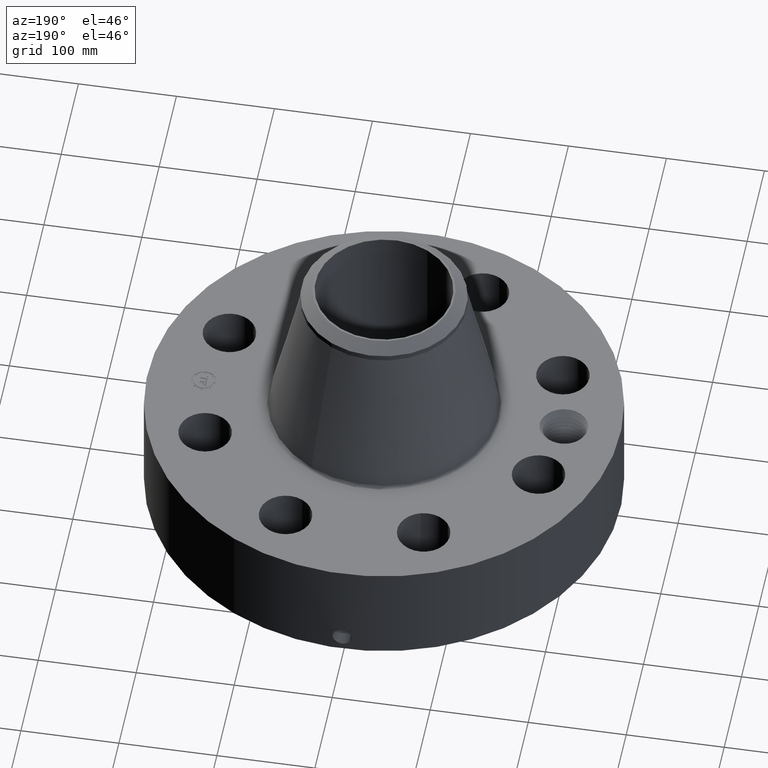
[diagram: clean part render]
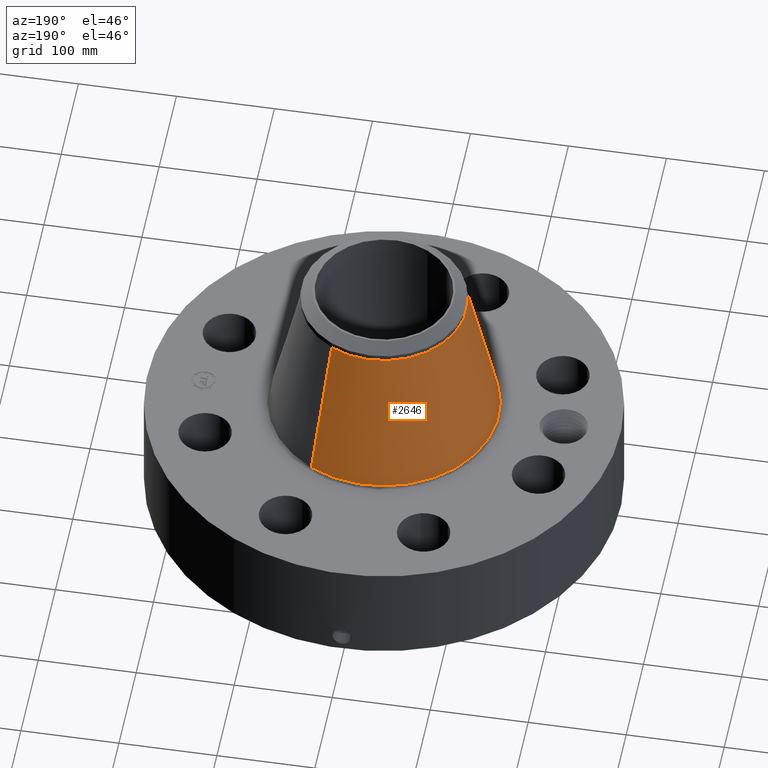
[diagram: same view with one face highlighted and labeled with its STEP entity id]
A machine part, auxiliary view. The second image highlights one B-rep face of the part: STEP entity #2646.
In plain terms, the highlighted conical surface has half-angle 12.537 deg.
Its self-contained STEP definition (entity closure, byte-faithful):
#1861=AXIS2_PLACEMENT_3D('Circle Axis2P3D',#1859,#1860,$) ;
#2607=AXIS2_PLACEMENT_3D('Cone Axis2P3D',#2604,#2605,#2606) ;
#2637=AXIS2_PLACEMENT_3D('Circle Axis2P3D',#2635,#2636,$) ;
#1837=CARTESIAN_POINT('Vertex',(2.20732687335,4.04048473948,4.59395168285)) ;
#1844=CARTESIAN_POINT('Vertex',(-2.20732687335,-4.04048473948,4.59395168285)) ;
#1859=CARTESIAN_POINT('Axis2P3D Location',(0.,0.,4.59395168285)) ;
#2604=CARTESIAN_POINT('Axis2P3D Location',(0.,0.,10.3910428908)) ;
#2609=CARTESIAN_POINT('Line Origine',(1.89831126692,3.47483546608,7.4924972868)) ;
#2613=CARTESIAN_POINT('Vertex',(1.58929566048,2.90918619268,10.3910428908)) ;
#2620=CARTESIAN_POINT('Vertex',(-1.58929566048,-2.90918619268,10.3910428908)) ;
#2623=CARTESIAN_POINT('Line Origine',(-1.89831126692,-3.47483546608,7.4924972868)) ;
#2635=CARTESIAN_POINT('Axis2P3D Location',(0.,0.,10.3910428908)) ;
#1860=DIRECTION('Axis2P3D Direction',(0.,0.,-0.0393700787402)) ;
#2605=DIRECTION('Axis2P3D Direction',(0.,0.,-0.0393700787402)) ;
#2606=DIRECTION('Axis2P3D XDirection',(-0.0188750212049,-0.0345504945626,0.)) ;
#2610=DIRECTION('Vector Direction',(0.00409718782425,0.00749985200583,-0.0384313462141)) ;
#2624=DIRECTION('Vector Direction',(-0.00409718782425,-0.00749985200583,-0.0384313462141)) ;
#2636=DIRECTION('Axis2P3D Direction',(0.,0.,-0.0393700787402)) ;
#2611=VECTOR('Line Direction',#2610,0.0393700787402) ;
#2625=VECTOR('Line Direction',#2624,0.0393700787402) ;
#2641=ORIENTED_EDGE('',*,*,#1863,.F.) ;
#2642=ORIENTED_EDGE('',*,*,#2627,.T.) ;
#2643=ORIENTED_EDGE('',*,*,#2639,.T.) ;
#2644=ORIENTED_EDGE('',*,*,#2615,.F.) ;
#2646=ADVANCED_FACE('PartBody',(#2645),#2608,.T.) ;
#1862=CIRCLE('generated circle',#1861,4.60410782408) ;
#2638=CIRCLE('generated circle',#2637,3.31500000001) ;
#2608=CONICAL_SURFACE('Cone',#2607,3.31500000001,0.218811187172) ;
#1863=EDGE_CURVE('',#1845,#1838,#1862,.T.) ;
#2615=EDGE_CURVE('',#1838,#2614,#2612,.F.) ;
#2627=EDGE_CURVE('',#1845,#2621,#2626,.F.) ;
#2639=EDGE_CURVE('',#2621,#2614,#2638,.T.) ;
#2640=EDGE_LOOP('',(#2641,#2642,#2643,#2644)) ;
#2645=FACE_OUTER_BOUND('',#2640,.T.) ;
#2612=LINE('Line',#2609,#2611) ;
#2626=LINE('Line',#2623,#2625) ;
#1838=VERTEX_POINT('',#1837) ;
#1845=VERTEX_POINT('',#1844) ;
#2614=VERTEX_POINT('',#2613) ;
#2621=VERTEX_POINT('',#2620) ;